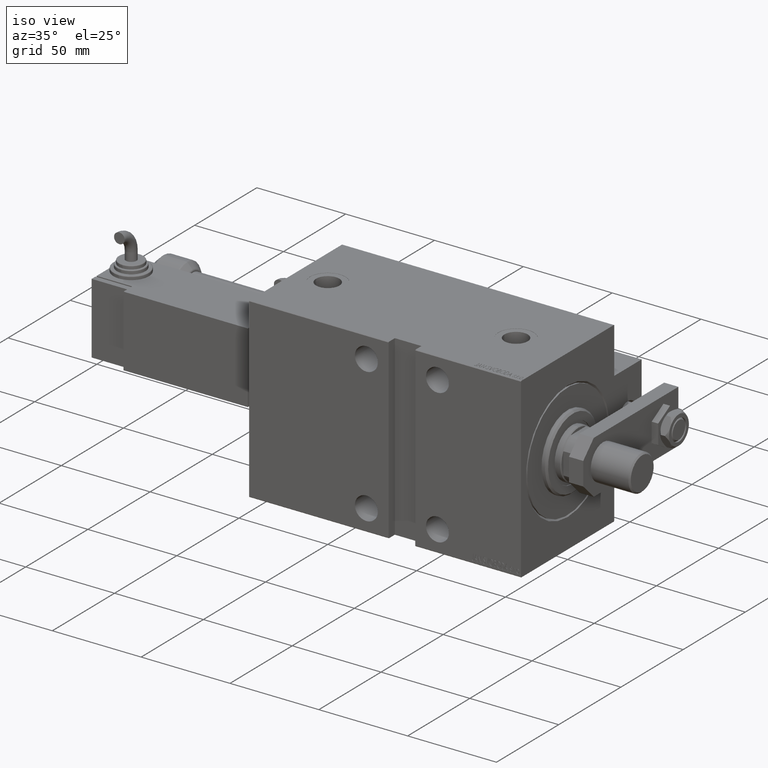
[diagram: clean part render]
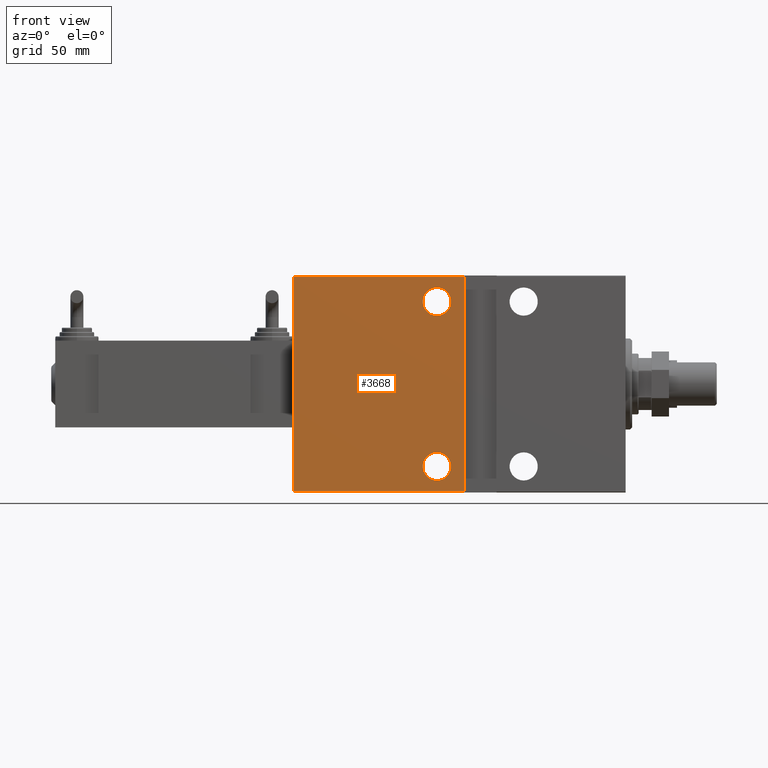
[diagram: tour spotlight — one face highlighted and labeled with its STEP entity id]
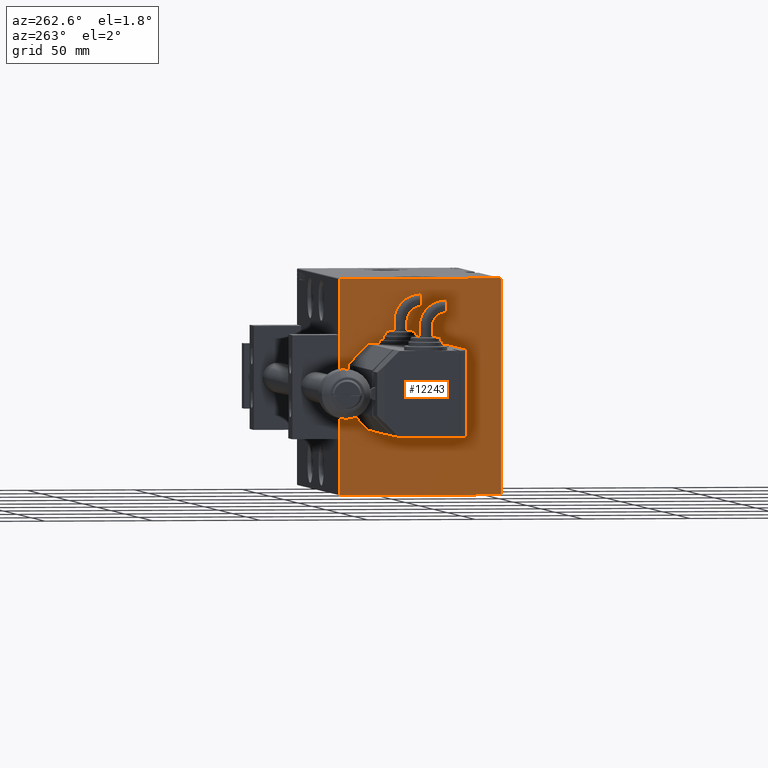
[diagram: tour spotlight — one face highlighted and labeled with its STEP entity id]
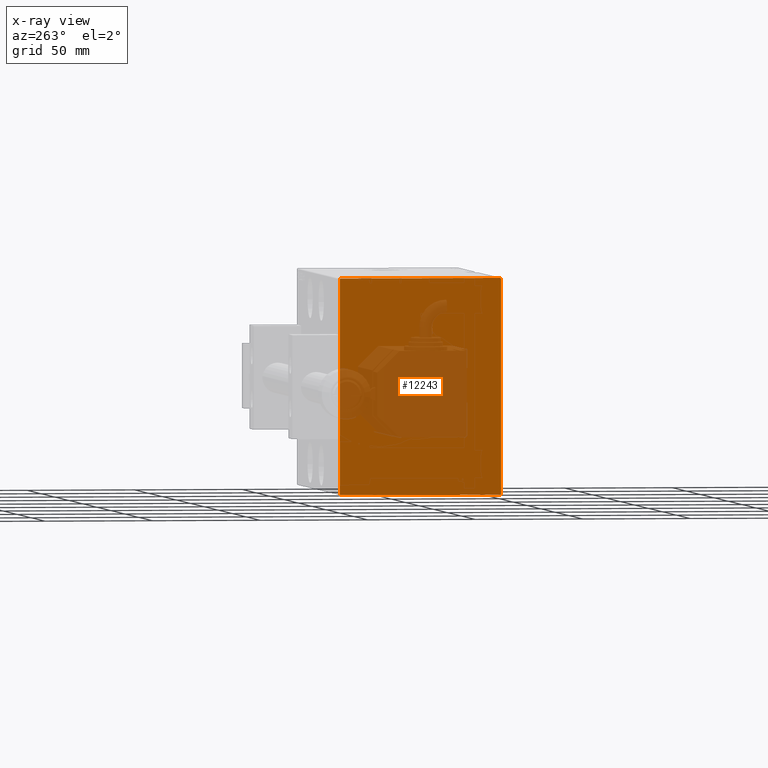
[diagram: x-ray of the same camera — body ghosted, this tour face saturated]
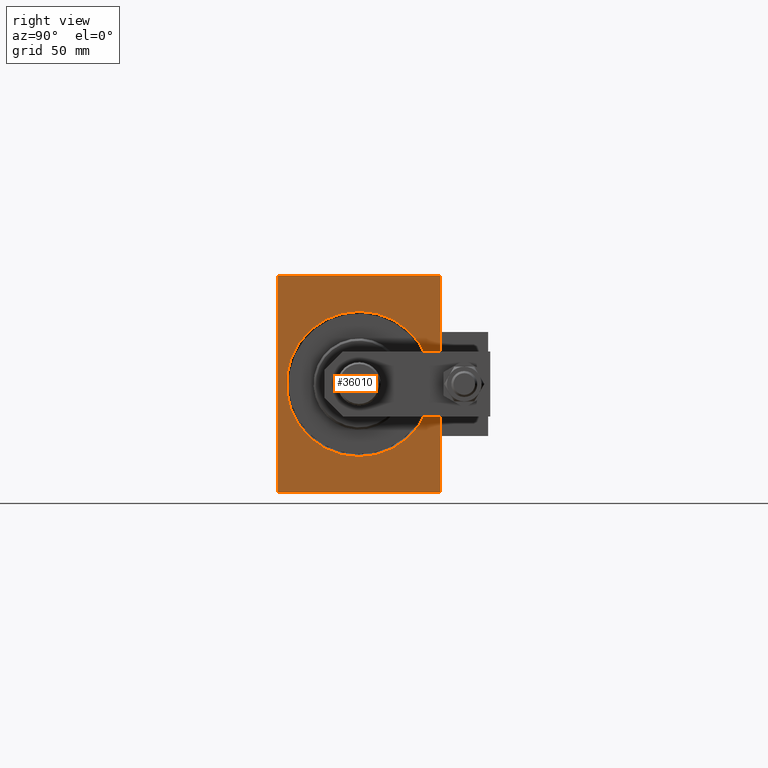
[diagram: tour spotlight — one face highlighted and labeled with its STEP entity id]
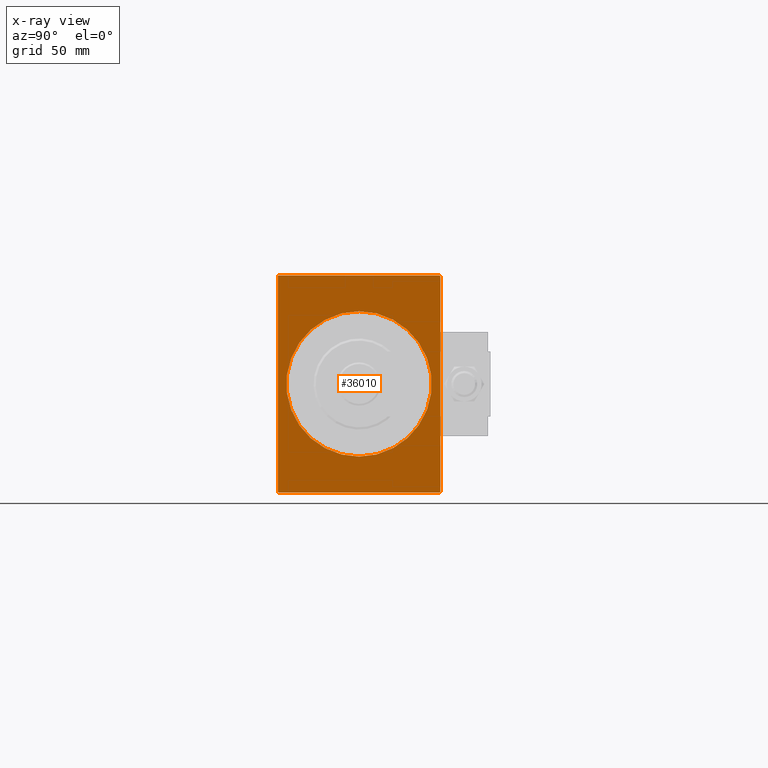
[diagram: x-ray of the same camera — body ghosted, this tour face saturated]
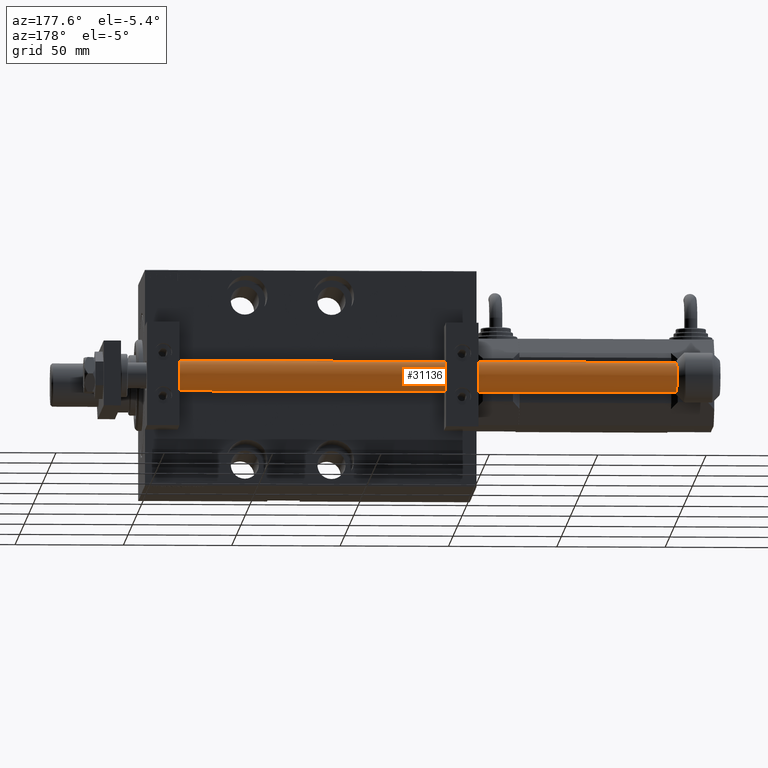
[diagram: tour spotlight — one face highlighted and labeled with its STEP entity id]
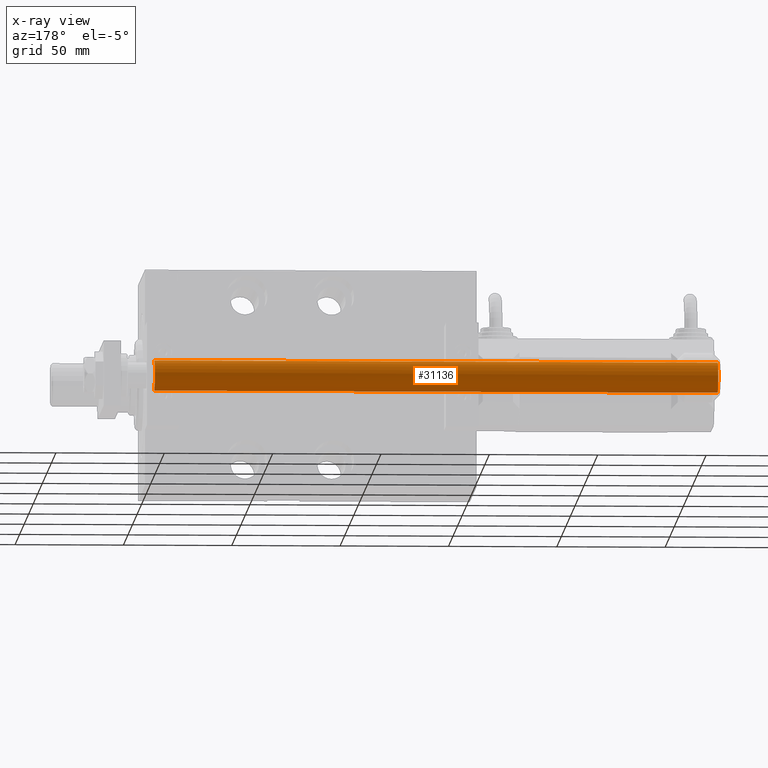
[diagram: x-ray of the same camera — body ghosted, this tour face saturated]
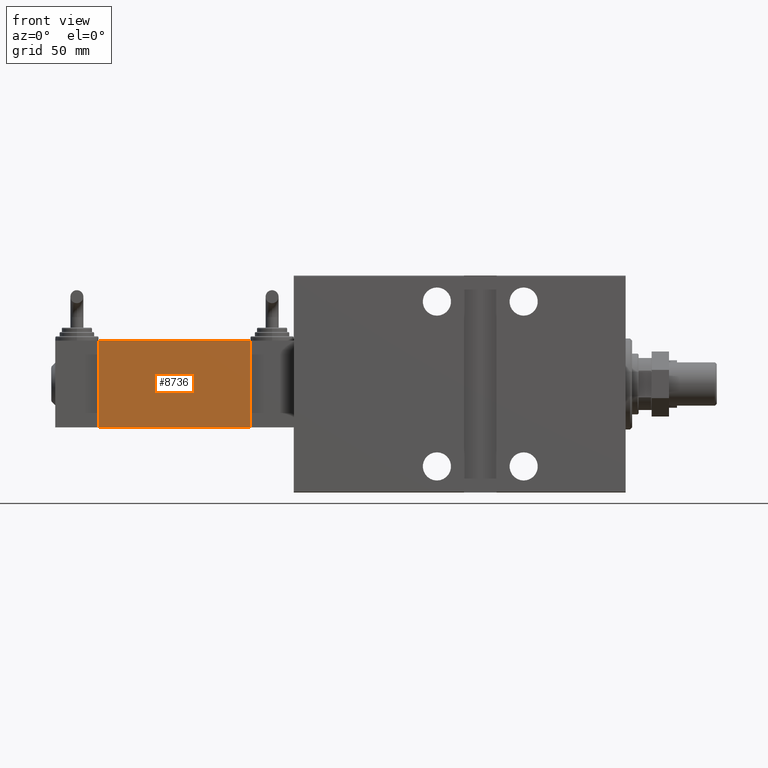
[diagram: tour spotlight — one face highlighted and labeled with its STEP entity id]
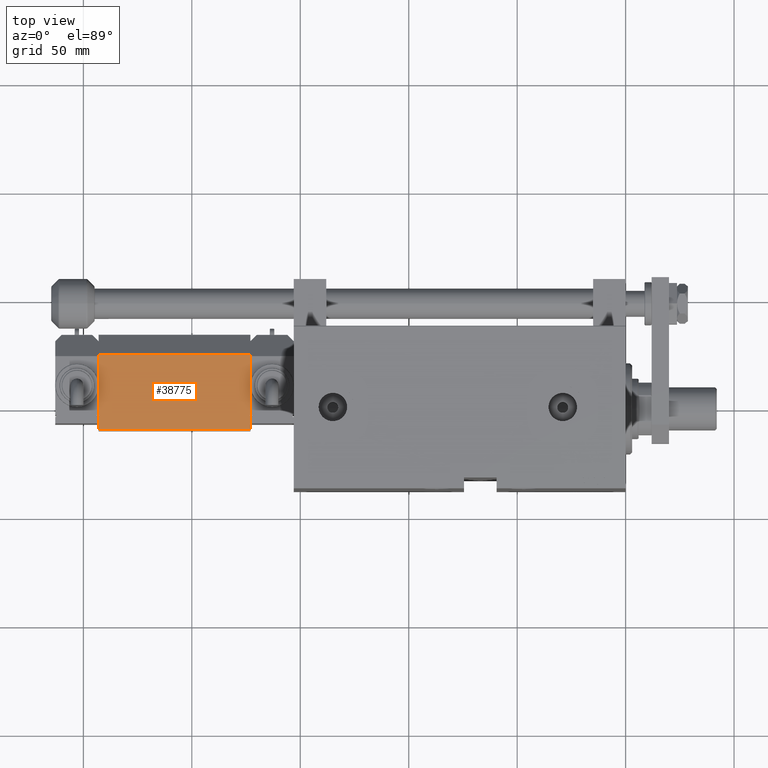
[diagram: tour spotlight — one face highlighted and labeled with its STEP entity id]
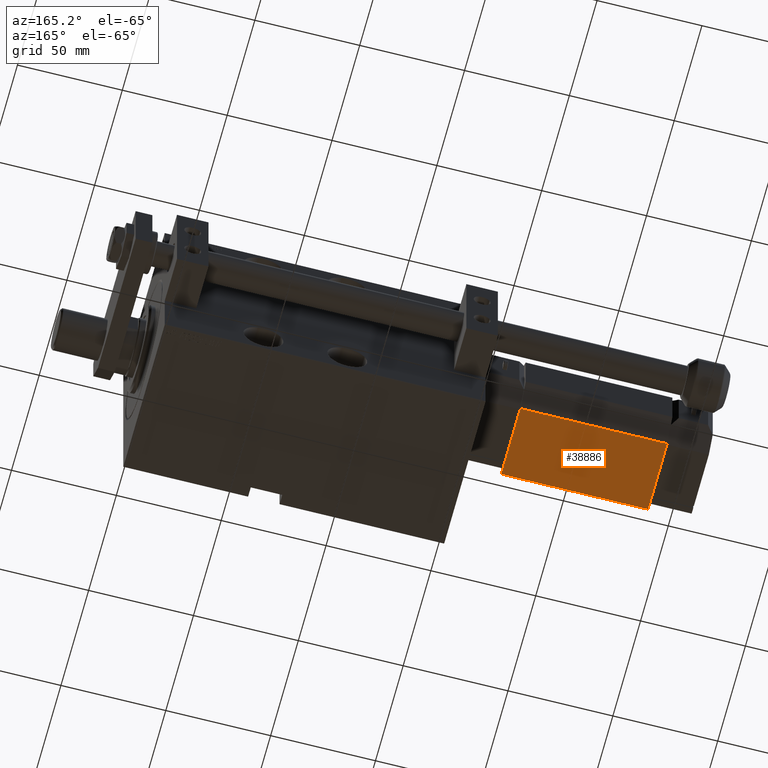
[diagram: tour spotlight — one face highlighted and labeled with its STEP entity id]
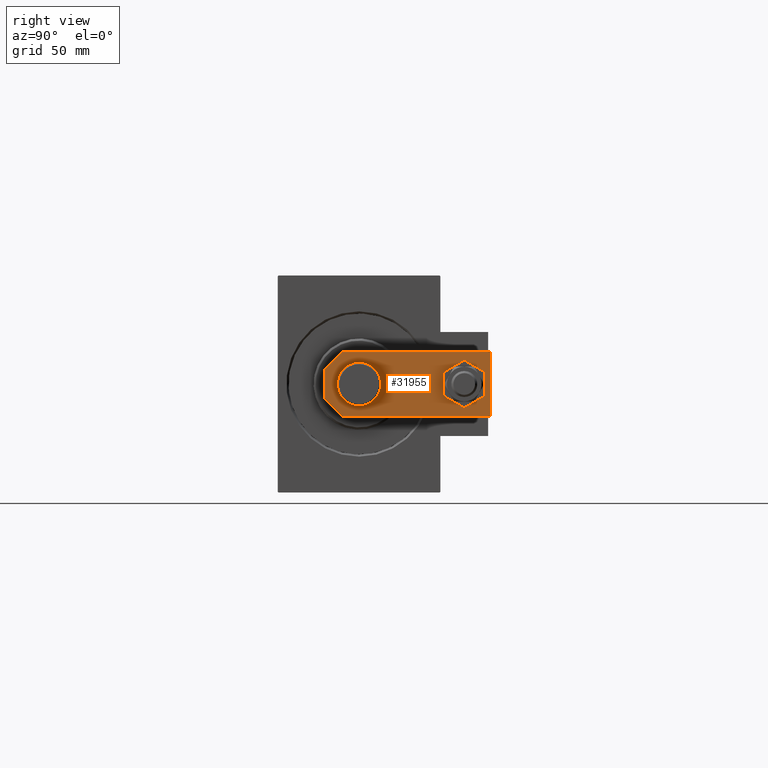
[diagram: tour spotlight — one face highlighted and labeled with its STEP entity id]
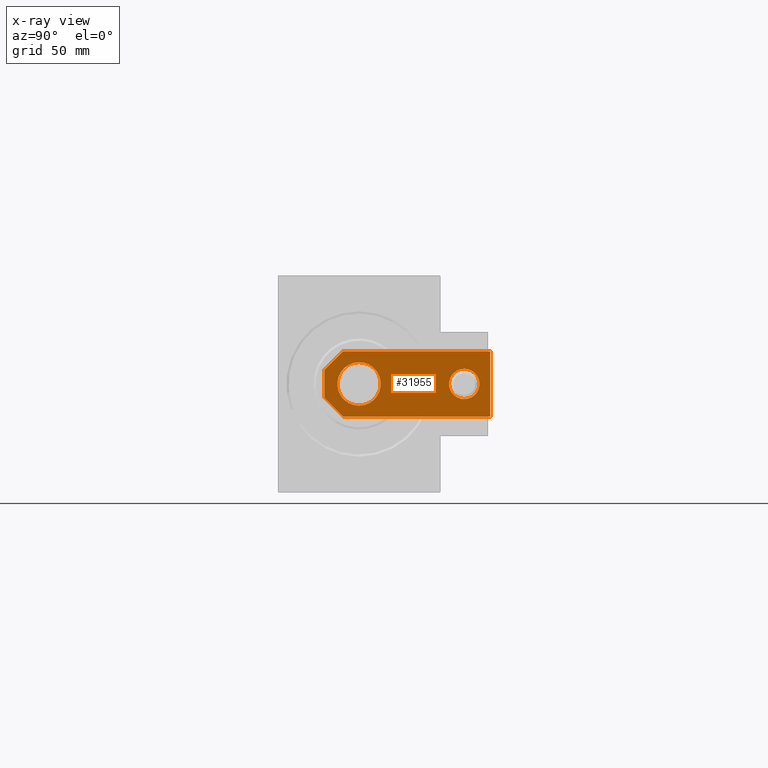
[diagram: x-ray of the same camera — body ghosted, this tour face saturated]
A machine part: a face-by-face anatomy tour. The part has 1133 B-rep faces; the first image is the clean iso view, then the 8 largest visible faces are spotlighted one at a time (largest first), each with its STEP entity span.

Face 1 — front view, entity #3668. In plain terms, the highlighted planar face has unit normal (-0, 1, -0).
Definition (entity closure, byte-faithful):
#235 = DIRECTION ( 'NONE',  ( 0.000000000000000000, 1.000000000000000000, 0.000000000000000000 ) ) ;
#253 = LINE ( 'NONE', #22828, #1662 ) ;
#479 = EDGE_CURVE ( 'NONE', #12399, #35926, #42917, .T. ) ;
#903 = AXIS2_PLACEMENT_3D ( 'NONE', #15784, #46635, #42341 ) ;
#993 = AXIS2_PLACEMENT_3D ( 'NONE', #20098, #27942, #24137 ) ;
#1662 = VECTOR ( 'NONE', #7859, 1000.000000000000000 ) ;
#2663 = DIRECTION ( 'NONE',  ( 0.000000000000000000, 0.000000000000000000, 1.000000000000000000 ) ) ;
#3243 = VECTOR ( 'NONE', #45287, 1000.000000000000000 ) ;
#3668 = ADVANCED_FACE ( 'NONE', ( #4389, #8449, #19852 ), #12509, .F. ) ;
#4389 = FACE_BOUND ( 'NONE', #40268, .T. ) ;
#4530 = CARTESIAN_POINT ( 'NONE',  ( 153.0000000000000000, 37.50000000000002132, -49.69999999999998153 ) ) ;
#5395 = EDGE_LOOP ( 'NONE', ( #19306, #37986 ) ) ;
#6107 = ORIENTED_EDGE ( 'NONE', *, *, #39025, .T. ) ;
#7859 = DIRECTION ( 'NONE',  ( 1.000000000000000000, 0.000000000000000000, 0.000000000000000000 ) ) ;
#8233 = CARTESIAN_POINT ( 'NONE',  ( 87.00000000000000000, 37.50000000000004263, 38.00000000000000711 ) ) ;
#8449 = FACE_BOUND ( 'NONE', #5395, .T. ) ;
#8485 = DIRECTION ( 'NONE',  ( 0.000000000000000000, 0.000000000000000000, 1.000000000000000000 ) ) ;
#9823 = CIRCLE ( 'NONE', #903, 6.500000000000005329 ) ;
#9908 = EDGE_LOOP ( 'NONE', ( #48104, #6107, #20477, #27159 ) ) ;
#9960 = AXIS2_PLACEMENT_3D ( 'NONE', #38724, #235, #15703 ) ;
#11993 = CARTESIAN_POINT ( 'NONE',  ( 153.0000000000000000, 37.50000000000002132, -49.69999999999998153 ) ) ;
#12399 = VERTEX_POINT ( 'NONE', #31303 ) ;
#12509 = PLANE ( 'NONE',  #993 ) ;
#12605 = DIRECTION ( 'NONE',  ( -1.387778780781445676E-16, 0.000000000000000000, -1.000000000000000000 ) ) ;
#13064 = CARTESIAN_POINT ( 'NONE',  ( 87.00000000000000000, 37.50000000000004263, -31.49999999999998579 ) ) ;
#13627 = EDGE_CURVE ( 'NONE', #35926, #12399, #49178, .T. ) ;
#13646 = AXIS2_PLACEMENT_3D ( 'NONE', #22427, #14565, #2663 ) ;
#14431 = LINE ( 'NONE', #18232, #3243 ) ;
#14565 = DIRECTION ( 'NONE',  ( 0.000000000000000000, 1.000000000000000000, 0.000000000000000000 ) ) ;
#14596 = ORIENTED_EDGE ( 'NONE', *, *, #26127, .F. ) ;
#14798 = CIRCLE ( 'NONE', #9960, 6.500000000000005329 ) ;
#14885 = VERTEX_POINT ( 'NONE', #4530 ) ;
#15048 = CARTESIAN_POINT ( 'NONE',  ( 74.50000000000002842, 37.50000000000001421, 49.70000000000003837 ) ) ;
#15703 = DIRECTION ( 'NONE',  ( 0.000000000000000000, 0.000000000000000000, 1.000000000000000000 ) ) ;
#15784 = CARTESIAN_POINT ( 'NONE',  ( 87.00000000000000000, 37.50000000000004263, -37.99999999999999289 ) ) ;
#15879 = VERTEX_POINT ( 'NONE', #43510 ) ;
#18232 = CARTESIAN_POINT ( 'NONE',  ( 153.0000000000000000, 37.50000000000002132, -50.00000000000000000 ) ) ;
#18305 = CARTESIAN_POINT ( 'NONE',  ( 87.00000000000000000, 37.50000000000004263, -44.50000000000000000 ) ) ;
#18984 = VERTEX_POINT ( 'NONE', #18305 ) ;
#19306 = ORIENTED_EDGE ( 'NONE', *, *, #13627, .F. ) ;
#19852 = FACE_OUTER_BOUND ( 'NONE', #9908, .T. ) ;
#20098 = CARTESIAN_POINT ( 'NONE',  ( 153.0000000000000000, 37.50000000000002132, -50.00000000000000000 ) ) ;
#20477 = ORIENTED_EDGE ( 'NONE', *, *, #46909, .F. ) ;
#22427 = CARTESIAN_POINT ( 'NONE',  ( 87.00000000000000000, 37.50000000000004263, 38.00000000000000711 ) ) ;
#22828 = CARTESIAN_POINT ( 'NONE',  ( 153.0000000000000000, 37.50000000000000711, 49.70000000000003837 ) ) ;
#24126 = DIRECTION ( 'NONE',  ( -1.000000000000000000, 0.000000000000000000, 0.000000000000000000 ) ) ;
#24137 = DIRECTION ( 'NONE',  ( 0.000000000000000000, 1.387778780781445676E-16, -1.000000000000000000 ) ) ;
#25495 = VECTOR ( 'NONE', #24126, 1000.000000000000000 ) ;
#26127 = EDGE_CURVE ( 'NONE', #34481, #18984, #9823, .T. ) ;
#27159 = ORIENTED_EDGE ( 'NONE', *, *, #28935, .T. ) ;
#27392 = EDGE_CURVE ( 'NONE', #14885, #47034, #14431, .T. ) ;
#27942 = DIRECTION ( 'NONE',  ( 0.000000000000000000, -1.000000000000000000, -1.387778780781445676E-16 ) ) ;
#28408 = AXIS2_PLACEMENT_3D ( 'NONE', #8233, #43152, #8485 ) ;
#28935 = EDGE_CURVE ( 'NONE', #38918, #47034, #253, .T. ) ;
#31238 = LINE ( 'NONE', #11993, #25495 ) ;
#31303 = CARTESIAN_POINT ( 'NONE',  ( 87.00000000000000000, 37.50000000000004263, 31.50000000000000000 ) ) ;
#31704 = ORIENTED_EDGE ( 'NONE', *, *, #33840, .F. ) ;
#32836 = CARTESIAN_POINT ( 'NONE',  ( 153.0000000000000000, 37.50000000000000711, 49.70000000000003837 ) ) ;
#33840 = EDGE_CURVE ( 'NONE', #18984, #34481, #14798, .T. ) ;
#34477 = CARTESIAN_POINT ( 'NONE',  ( 87.00000000000000000, 37.50000000000004263, 44.50000000000001421 ) ) ;
#34481 = VERTEX_POINT ( 'NONE', #13064 ) ;
#35926 = VERTEX_POINT ( 'NONE', #34477 ) ;
#37986 = ORIENTED_EDGE ( 'NONE', *, *, #479, .F. ) ;
#38724 = CARTESIAN_POINT ( 'NONE',  ( 87.00000000000000000, 37.50000000000004263, -37.99999999999999289 ) ) ;
#38918 = VERTEX_POINT ( 'NONE', #15048 ) ;
#39025 = EDGE_CURVE ( 'NONE', #14885, #15879, #31238, .T. ) ;
#39176 = CARTESIAN_POINT ( 'NONE',  ( 74.50000000000002842, 37.50000000000001421, 50.00000000000000000 ) ) ;
#39665 = LINE ( 'NONE', #39176, #49183 ) ;
#40268 = EDGE_LOOP ( 'NONE', ( #14596, #31704 ) ) ;
#42341 = DIRECTION ( 'NONE',  ( 0.000000000000000000, 0.000000000000000000, 1.000000000000000000 ) ) ;
#42917 = CIRCLE ( 'NONE', #28408, 6.500000000000005329 ) ;
#43152 = DIRECTION ( 'NONE',  ( 0.000000000000000000, 1.000000000000000000, 0.000000000000000000 ) ) ;
#43510 = CARTESIAN_POINT ( 'NONE',  ( 74.50000000000001421, 37.50000000000001421, -49.69999999999998153 ) ) ;
#45287 = DIRECTION ( 'NONE',  ( 0.000000000000000000, -1.387778780781445676E-16, 1.000000000000000000 ) ) ;
#46635 = DIRECTION ( 'NONE',  ( 0.000000000000000000, 1.000000000000000000, 0.000000000000000000 ) ) ;
#46909 = EDGE_CURVE ( 'NONE', #38918, #15879, #39665, .T. ) ;
#47034 = VERTEX_POINT ( 'NONE', #32836 ) ;
#48104 = ORIENTED_EDGE ( 'NONE', *, *, #27392, .F. ) ;
#49178 = CIRCLE ( 'NONE', #13646, 6.500000000000005329 ) ;
#49183 = VECTOR ( 'NONE', #12605, 1000.000000000000000 ) ;

Face 2 — auxiliary view, entity #12243. An x-ray twin of the same camera follows (body ghosted, this face saturated) — the face is partly hidden behind the body. In plain terms, the highlighted planar face has unit normal (-1, -0, 0).
Definition (entity closure, byte-faithful):
#968 = ORIENTED_EDGE ( 'NONE', *, *, #36955, .T. ) ;
#2402 = VERTEX_POINT ( 'NONE', #32547 ) ;
#2882 = DIRECTION ( 'NONE',  ( 0.000000000000000000, 0.000000000000000000, -1.000000000000000000 ) ) ;
#3243 = VECTOR ( 'NONE', #45287, 1000.000000000000000 ) ;
#4530 = CARTESIAN_POINT ( 'NONE',  ( 153.0000000000000000, 37.50000000000002132, -49.69999999999998153 ) ) ;
#4987 = CARTESIAN_POINT ( 'NONE',  ( 153.0000000000000000, -37.49999999999999289, -50.00000000000000000 ) ) ;
#5164 = VERTEX_POINT ( 'NONE', #25774 ) ;
#6175 = AXIS2_PLACEMENT_3D ( 'NONE', #14615, #6764, #49521 ) ;
#6764 = DIRECTION ( 'NONE',  ( 1.000000000000000000, 0.000000000000000000, 0.000000000000000000 ) ) ;
#8343 = CARTESIAN_POINT ( 'NONE',  ( 153.0000000000000000, 37.50000000000000711, 50.00000000000000000 ) ) ;
#10178 = ORIENTED_EDGE ( 'NONE', *, *, #42454, .T. ) ;
#12243 = ADVANCED_FACE ( 'NONE', ( #26495 ), #34092, .T. ) ;
#12712 = ORIENTED_EDGE ( 'NONE', *, *, #37973, .T. ) ;
#12758 = DIRECTION ( 'NONE',  ( -0.000000000000000000, 0.7071067811865474617, 0.7071067811865474617 ) ) ;
#12842 = VERTEX_POINT ( 'NONE', #16543 ) ;
#13280 = ORIENTED_EDGE ( 'NONE', *, *, #25683, .T. ) ;
#14268 = ORIENTED_EDGE ( 'NONE', *, *, #22732, .T. ) ;
#14298 = CARTESIAN_POINT ( 'NONE',  ( 153.0000000000000000, -37.49999999999999289, 50.00000000000000000 ) ) ;
#14431 = LINE ( 'NONE', #18232, #3243 ) ;
#14615 = CARTESIAN_POINT ( 'NONE',  ( 153.0000000000000000, 0.000000000000000000, 0.000000000000000000 ) ) ;
#14885 = VERTEX_POINT ( 'NONE', #4530 ) ;
#16543 = CARTESIAN_POINT ( 'NONE',  ( 153.0000000000000000, 37.20000000000000995, 50.00000000000000000 ) ) ;
#17057 = LINE ( 'NONE', #32239, #29116 ) ;
#17891 = VECTOR ( 'NONE', #2882, 1000.000000000000000 ) ;
#18232 = CARTESIAN_POINT ( 'NONE',  ( 153.0000000000000000, 37.50000000000002132, -50.00000000000000000 ) ) ;
#19402 = LINE ( 'NONE', #31053, #38959 ) ;
#19914 = DIRECTION ( 'NONE',  ( -0.000000000000000000, -0.7071067811865802133, 0.7071067811865149322 ) ) ;
#20455 = DIRECTION ( 'NONE',  ( 0.000000000000000000, 1.000000000000000000, 0.000000000000000000 ) ) ;
#20465 = ORIENTED_EDGE ( 'NONE', *, *, #32019, .T. ) ;
#20762 = DIRECTION ( 'NONE',  ( -0.000000000000000000, 0.7071067811865474617, -0.7071067811865474617 ) ) ;
#22732 = EDGE_CURVE ( 'NONE', #5164, #14885, #17057, .T. ) ;
#22806 = ORIENTED_EDGE ( 'NONE', *, *, #30408, .T. ) ;
#23751 = CARTESIAN_POINT ( 'NONE',  ( 153.0000000000000000, -37.49999999999999289, -49.69999999999998153 ) ) ;
#24273 = VERTEX_POINT ( 'NONE', #23751 ) ;
#24751 = LINE ( 'NONE', #4987, #37611 ) ;
#24883 = CARTESIAN_POINT ( 'NONE',  ( 153.0000000000000000, -37.19999999999996732, -50.00000000000000000 ) ) ;
#25683 = EDGE_CURVE ( 'NONE', #32989, #24273, #32274, .T. ) ;
#25774 = CARTESIAN_POINT ( 'NONE',  ( 153.0000000000000000, 37.19999999999999574, -50.00000000000000000 ) ) ;
#26495 = FACE_OUTER_BOUND ( 'NONE', #48754, .T. ) ;
#27030 = VECTOR ( 'NONE', #28085, 1000.000000000000000 ) ;
#27392 = EDGE_CURVE ( 'NONE', #14885, #47034, #14431, .T. ) ;
#28085 = DIRECTION ( 'NONE',  ( 0.000000000000000000, -1.000000000000000000, 0.000000000000000000 ) ) ;
#28602 = LINE ( 'NONE', #39475, #42447 ) ;
#29116 = VECTOR ( 'NONE', #12758, 1000.000000000000114 ) ;
#29906 = VERTEX_POINT ( 'NONE', #24883 ) ;
#30408 = EDGE_CURVE ( 'NONE', #47034, #12842, #19402, .T. ) ;
#31053 = CARTESIAN_POINT ( 'NONE',  ( 153.0000000000000000, 43.59999999999828901, 43.60000000000231779 ) ) ;
#31256 = CARTESIAN_POINT ( 'NONE',  ( 153.0000000000000000, -43.59999999999998721, 43.59999999999998721 ) ) ;
#31635 = LINE ( 'NONE', #8343, #27030 ) ;
#31710 = VECTOR ( 'NONE', #38837, 1000.000000000000114 ) ;
#32019 = EDGE_CURVE ( 'NONE', #2402, #32989, #47171, .T. ) ;
#32239 = CARTESIAN_POINT ( 'NONE',  ( 153.0000000000000000, 43.60000000000000142, -43.60000000000000142 ) ) ;
#32274 = LINE ( 'NONE', #14298, #17891 ) ;
#32547 = CARTESIAN_POINT ( 'NONE',  ( 153.0000000000000000, -37.19999999999996732, 50.00000000000000000 ) ) ;
#32836 = CARTESIAN_POINT ( 'NONE',  ( 153.0000000000000000, 37.50000000000000711, 49.70000000000003837 ) ) ;
#32989 = VERTEX_POINT ( 'NONE', #43134 ) ;
#34092 = PLANE ( 'NONE',  #6175 ) ;
#35920 = ORIENTED_EDGE ( 'NONE', *, *, #27392, .T. ) ;
#36955 = EDGE_CURVE ( 'NONE', #12842, #2402, #31635, .T. ) ;
#37611 = VECTOR ( 'NONE', #20455, 1000.000000000000000 ) ;
#37973 = EDGE_CURVE ( 'NONE', #29906, #5164, #24751, .T. ) ;
#38837 = DIRECTION ( 'NONE',  ( 0.000000000000000000, -0.7071067811865474617, -0.7071067811865474617 ) ) ;
#38959 = VECTOR ( 'NONE', #19914, 999.9999999999998863 ) ;
#39475 = CARTESIAN_POINT ( 'NONE',  ( 153.0000000000000000, -43.59999999999998721, -43.59999999999998721 ) ) ;
#42447 = VECTOR ( 'NONE', #20762, 1000.000000000000114 ) ;
#42454 = EDGE_CURVE ( 'NONE', #24273, #29906, #28602, .T. ) ;
#43134 = CARTESIAN_POINT ( 'NONE',  ( 153.0000000000000000, -37.49999999999999289, 49.69999999999998153 ) ) ;
#45287 = DIRECTION ( 'NONE',  ( 0.000000000000000000, -1.387778780781445676E-16, 1.000000000000000000 ) ) ;
#47034 = VERTEX_POINT ( 'NONE', #32836 ) ;
#47171 = LINE ( 'NONE', #31256, #31710 ) ;
#48754 = EDGE_LOOP ( 'NONE', ( #12712, #14268, #35920, #22806, #968, #20465, #13280, #10178 ) ) ;
#49521 = DIRECTION ( 'NONE',  ( 0.000000000000000000, 0.000000000000000000, -1.000000000000000000 ) ) ;

Face 3 — right view, entity #36010. An x-ray twin of the same camera follows (body ghosted, this face saturated) — the face is partly hidden behind the body. In plain terms, the highlighted planar face has unit normal (-1, -0, 0).
Definition (entity closure, byte-faithful):
#1466 = VECTOR ( 'NONE', #14332, 999.9999999999998863 ) ;
#1826 = CARTESIAN_POINT ( 'NONE',  ( 0.000000000000000000, 37.50000000000002132, -49.69999999999998153 ) ) ;
#2753 = AXIS2_PLACEMENT_3D ( 'NONE', #25087, #25597, #9648 ) ;
#3188 = DIRECTION ( 'NONE',  ( -0.000000000000000000, 0.7071067811865474617, 0.7071067811865474617 ) ) ;
#3219 = DIRECTION ( 'NONE',  ( 0.000000000000000000, -1.000000000000000000, 0.000000000000000000 ) ) ;
#3871 = EDGE_CURVE ( 'NONE', #13331, #30685, #10843, .T. ) ;
#3936 = DIRECTION ( 'NONE',  ( 0.000000000000000000, 0.000000000000000000, -1.000000000000000000 ) ) ;
#4396 = ORIENTED_EDGE ( 'NONE', *, *, #10738, .T. ) ;
#4639 = ORIENTED_EDGE ( 'NONE', *, *, #28884, .F. ) ;
#5014 = CARTESIAN_POINT ( 'NONE',  ( 0.000000000000000000, -37.19999999999996732, -50.00000000000000000 ) ) ;
#6231 = CARTESIAN_POINT ( 'NONE',  ( 0.000000000000000000, 37.20000000000000995, 50.00000000000000000 ) ) ;
#7133 = EDGE_CURVE ( 'NONE', #27829, #36740, #10412, .T. ) ;
#7751 = CARTESIAN_POINT ( 'NONE',  ( 0.000000000000000000, 0.000000000000000000, 0.000000000000000000 ) ) ;
#9105 = VECTOR ( 'NONE', #3219, 1000.000000000000000 ) ;
#9648 = DIRECTION ( 'NONE',  ( 0.000000000000000000, 0.000000000000000000, -1.000000000000000000 ) ) ;
#9906 = FACE_OUTER_BOUND ( 'NONE', #11954, .T. ) ;
#9922 = ORIENTED_EDGE ( 'NONE', *, *, #3871, .F. ) ;
#10163 = ORIENTED_EDGE ( 'NONE', *, *, #7133, .F. ) ;
#10412 = LINE ( 'NONE', #37250, #43205 ) ;
#10738 = EDGE_CURVE ( 'NONE', #11638, #18171, #28768, .T. ) ;
#10843 = LINE ( 'NONE', #26034, #9105 ) ;
#10884 = LINE ( 'NONE', #1826, #40678 ) ;
#11638 = VERTEX_POINT ( 'NONE', #33954 ) ;
#11954 = EDGE_LOOP ( 'NONE', ( #9922, #40042, #4639, #34119, #45873, #44366, #10163, #35101 ) ) ;
#12564 = LINE ( 'NONE', #24703, #14873 ) ;
#13331 = VERTEX_POINT ( 'NONE', #41448 ) ;
#14118 = EDGE_CURVE ( 'NONE', #13331, #37063, #48994, .T. ) ;
#14332 = DIRECTION ( 'NONE',  ( -0.000000000000000000, 0.7071067811865802133, -0.7071067811865149322 ) ) ;
#14873 = VECTOR ( 'NONE', #24446, 1000.000000000000114 ) ;
#17298 = DIRECTION ( 'NONE',  ( 0.000000000000000000, -0.7071067811865474617, -0.7071067811865474617 ) ) ;
#17316 = CIRCLE ( 'NONE', #23785, 33.50000000000000000 ) ;
#17341 = EDGE_CURVE ( 'NONE', #31508, #36809, #36401, .T. ) ;
#17636 = EDGE_CURVE ( 'NONE', #18171, #11638, #17316, .T. ) ;
#17778 = DIRECTION ( 'NONE',  ( 0.000000000000000000, 0.000000000000000000, -1.000000000000000000 ) ) ;
#18171 = VERTEX_POINT ( 'NONE', #30118 ) ;
#18201 = EDGE_CURVE ( 'NONE', #37991, #36809, #10884, .T. ) ;
#21949 = VECTOR ( 'NONE', #32273, 1000.000000000000000 ) ;
#22705 = LINE ( 'NONE', #34087, #37711 ) ;
#23785 = AXIS2_PLACEMENT_3D ( 'NONE', #7751, #38638, #3936 ) ;
#24446 = DIRECTION ( 'NONE',  ( -0.000000000000000000, -0.7071067811865474617, 0.7071067811865474617 ) ) ;
#24703 = CARTESIAN_POINT ( 'NONE',  ( 0.000000000000000000, -37.19999999999996732, -50.00000000000000000 ) ) ;
#24934 = LINE ( 'NONE', #44399, #21949 ) ;
#25087 = CARTESIAN_POINT ( 'NONE',  ( 0.000000000000000000, 0.000000000000000000, 0.000000000000000000 ) ) ;
#25344 = PLANE ( 'NONE',  #2753 ) ;
#25356 = DIRECTION ( 'NONE',  ( 0.000000000000000000, 0.000000000000000000, -1.000000000000000000 ) ) ;
#25597 = DIRECTION ( 'NONE',  ( 1.000000000000000000, 0.000000000000000000, 0.000000000000000000 ) ) ;
#26034 = CARTESIAN_POINT ( 'NONE',  ( 0.000000000000000000, 37.50000000000000711, 50.00000000000000000 ) ) ;
#27829 = VERTEX_POINT ( 'NONE', #49037 ) ;
#27964 = AXIS2_PLACEMENT_3D ( 'NONE', #44841, #36761, #17778 ) ;
#28054 = CARTESIAN_POINT ( 'NONE',  ( 0.000000000000000000, -37.49999999999999289, -50.00000000000000000 ) ) ;
#28768 = CIRCLE ( 'NONE', #27964, 33.50000000000000000 ) ;
#28884 = EDGE_CURVE ( 'NONE', #37991, #37063, #24934, .T. ) ;
#29192 = ORIENTED_EDGE ( 'NONE', *, *, #17636, .T. ) ;
#29585 = EDGE_LOOP ( 'NONE', ( #4396, #29192 ) ) ;
#30118 = CARTESIAN_POINT ( 'NONE',  ( 0.000000000000000000, 4.102566777143633774E-15, -33.50000000000000000 ) ) ;
#30685 = VERTEX_POINT ( 'NONE', #43597 ) ;
#31508 = VERTEX_POINT ( 'NONE', #5014 ) ;
#32273 = DIRECTION ( 'NONE',  ( 0.000000000000000000, -1.387778780781445676E-16, 1.000000000000000000 ) ) ;
#32692 = CARTESIAN_POINT ( 'NONE',  ( 0.000000000000000000, -37.49999999999999289, -49.69999999999998153 ) ) ;
#33927 = CARTESIAN_POINT ( 'NONE',  ( 0.000000000000000000, 37.19999999999999574, -50.00000000000000000 ) ) ;
#33954 = CARTESIAN_POINT ( 'NONE',  ( 0.000000000000000000, 0.000000000000000000, 33.50000000000000000 ) ) ;
#34087 = CARTESIAN_POINT ( 'NONE',  ( 0.000000000000000000, -37.49999999999999289, 49.69999999999998153 ) ) ;
#34119 = ORIENTED_EDGE ( 'NONE', *, *, #18201, .T. ) ;
#34497 = EDGE_CURVE ( 'NONE', #31508, #36740, #12564, .T. ) ;
#35101 = ORIENTED_EDGE ( 'NONE', *, *, #44699, .T. ) ;
#36010 = ADVANCED_FACE ( 'NONE', ( #44561, #9906 ), #25344, .F. ) ;
#36401 = LINE ( 'NONE', #28054, #44689 ) ;
#36740 = VERTEX_POINT ( 'NONE', #32692 ) ;
#36761 = DIRECTION ( 'NONE',  ( 1.000000000000000000, 0.000000000000000000, 0.000000000000000000 ) ) ;
#36809 = VERTEX_POINT ( 'NONE', #33927 ) ;
#37063 = VERTEX_POINT ( 'NONE', #48811 ) ;
#37250 = CARTESIAN_POINT ( 'NONE',  ( 0.000000000000000000, -37.49999999999999289, 50.00000000000000000 ) ) ;
#37711 = VECTOR ( 'NONE', #3188, 1000.000000000000114 ) ;
#37991 = VERTEX_POINT ( 'NONE', #39925 ) ;
#38638 = DIRECTION ( 'NONE',  ( 1.000000000000000000, 0.000000000000000000, 0.000000000000000000 ) ) ;
#39433 = DIRECTION ( 'NONE',  ( 0.000000000000000000, 1.000000000000000000, 0.000000000000000000 ) ) ;
#39925 = CARTESIAN_POINT ( 'NONE',  ( 0.000000000000000000, 37.50000000000002132, -49.69999999999998153 ) ) ;
#40042 = ORIENTED_EDGE ( 'NONE', *, *, #14118, .T. ) ;
#40678 = VECTOR ( 'NONE', #17298, 1000.000000000000114 ) ;
#41448 = CARTESIAN_POINT ( 'NONE',  ( 0.000000000000000000, 37.20000000000000995, 50.00000000000000000 ) ) ;
#43205 = VECTOR ( 'NONE', #25356, 1000.000000000000000 ) ;
#43597 = CARTESIAN_POINT ( 'NONE',  ( 0.000000000000000000, -37.19999999999996732, 50.00000000000000000 ) ) ;
#44366 = ORIENTED_EDGE ( 'NONE', *, *, #34497, .T. ) ;
#44399 = CARTESIAN_POINT ( 'NONE',  ( 0.000000000000000000, 37.50000000000002132, -50.00000000000000000 ) ) ;
#44561 = FACE_BOUND ( 'NONE', #29585, .T. ) ;
#44689 = VECTOR ( 'NONE', #39433, 1000.000000000000000 ) ;
#44699 = EDGE_CURVE ( 'NONE', #27829, #30685, #22705, .T. ) ;
#44841 = CARTESIAN_POINT ( 'NONE',  ( 0.000000000000000000, 0.000000000000000000, 0.000000000000000000 ) ) ;
#45873 = ORIENTED_EDGE ( 'NONE', *, *, #17341, .F. ) ;
#48811 = CARTESIAN_POINT ( 'NONE',  ( 0.000000000000000000, 37.50000000000000711, 49.70000000000003837 ) ) ;
#48994 = LINE ( 'NONE', #6231, #1466 ) ;
#49037 = CARTESIAN_POINT ( 'NONE',  ( 0.000000000000000000, -37.49999999999999289, 49.69999999999998153 ) ) ;

Face 4 — auxiliary view, entity #31136. An x-ray twin of the same camera follows (body ghosted, this face saturated) — the face is partly hidden behind the body. In plain terms, the highlighted cylindrical surface (edge-blend (fillet) strip) has radius 7 mm, axis along (1, 0, -0).
Definition (entity closure, byte-faithful):
#686 = DIRECTION ( 'NONE',  ( -0.000000000000000000, -0.000000000000000000, -1.000000000000000000 ) ) ;
#717 = VERTEX_POINT ( 'NONE', #46812 ) ;
#2070 = CARTESIAN_POINT ( 'NONE',  ( -7.000000000000000000, 0.000000000000000000, 263.0000000000000000 ) ) ;
#2630 = CARTESIAN_POINT ( 'NONE',  ( 0.000000000000000000, 0.000000000000000000, 262.0000000000000000 ) ) ;
#3183 = CARTESIAN_POINT ( 'NONE',  ( 0.000000000000000000, 0.000000000000000000, 262.0000000000000000 ) ) ;
#3492 = LINE ( 'NONE', #42215, #32050 ) ;
#4304 = CARTESIAN_POINT ( 'NONE',  ( 7.000000000000000000, 8.572527594031473190E-16, 2.000000000000057288 ) ) ;
#4886 = VERTEX_POINT ( 'NONE', #45799 ) ;
#6906 = ORIENTED_EDGE ( 'NONE', *, *, #12122, .T. ) ;
#7819 = DIRECTION ( 'NONE',  ( -0.000000000000000000, -0.000000000000000000, -1.000000000000000000 ) ) ;
#8613 = VERTEX_POINT ( 'NONE', #4304 ) ;
#8884 = CARTESIAN_POINT ( 'NONE',  ( 7.000000000000000000, 8.572527594031473190E-16, 262.0000000000000000 ) ) ;
#10484 = DIRECTION ( 'NONE',  ( 0.000000000000000000, 0.000000000000000000, -1.000000000000000000 ) ) ;
#10734 = ORIENTED_EDGE ( 'NONE', *, *, #16422, .T. ) ;
#11226 = EDGE_CURVE ( 'NONE', #19239, #8613, #3492, .T. ) ;
#11786 = DIRECTION ( 'NONE',  ( -0.000000000000000000, -0.000000000000000000, 1.000000000000000000 ) ) ;
#12122 = EDGE_CURVE ( 'NONE', #4886, #717, #35249, .T. ) ;
#12388 = FACE_OUTER_BOUND ( 'NONE', #12394, .T. ) ;
#12394 = EDGE_LOOP ( 'NONE', ( #22943, #19131, #10734, #33435, #43135, #6906 ) ) ;
#13371 = CARTESIAN_POINT ( 'NONE',  ( 0.000000000000000000, 0.000000000000000000, 262.0000000000000000 ) ) ;
#14071 = CIRCLE ( 'NONE', #16484, 7.000000000000000000 ) ;
#15943 = VERTEX_POINT ( 'NONE', #40978 ) ;
#16177 = DIRECTION ( 'NONE',  ( -1.000000000000000000, 0.000000000000000000, 0.000000000000000000 ) ) ;
#16422 = EDGE_CURVE ( 'NONE', #8613, #26467, #14071, .T. ) ;
#16484 = AXIS2_PLACEMENT_3D ( 'NONE', #26477, #11786, #26970 ) ;
#17035 = DIRECTION ( 'NONE',  ( -0.000000000000000000, -0.000000000000000000, -1.000000000000000000 ) ) ;
#17416 = DIRECTION ( 'NONE',  ( 0.000000000000000000, 0.000000000000000000, -1.000000000000000000 ) ) ;
#19131 = ORIENTED_EDGE ( 'NONE', *, *, #11226, .T. ) ;
#19239 = VERTEX_POINT ( 'NONE', #8884 ) ;
#20472 = EDGE_CURVE ( 'NONE', #15943, #26467, #32469, .T. ) ;
#22228 = DIRECTION ( 'NONE',  ( 1.000000000000000000, -8.881784197001252323E-16, 0.000000000000000000 ) ) ;
#22943 = ORIENTED_EDGE ( 'NONE', *, *, #48279, .T. ) ;
#23279 = CARTESIAN_POINT ( 'NONE',  ( 0.000000000000000000, 0.000000000000000000, 263.0000000000000000 ) ) ;
#26467 = VERTEX_POINT ( 'NONE', #42531 ) ;
#26477 = CARTESIAN_POINT ( 'NONE',  ( 0.000000000000000000, 0.000000000000000000, 2.000000000000057288 ) ) ;
#26970 = DIRECTION ( 'NONE',  ( 1.000000000000000000, 0.000000000000000000, 0.000000000000000000 ) ) ;
#28192 = CIRCLE ( 'NONE', #32244, 7.000000000000000000 ) ;
#30530 = DIRECTION ( 'NONE',  ( 0.000000000000000000, 0.000000000000000000, -1.000000000000000000 ) ) ;
#31136 = ADVANCED_FACE ( 'NONE', ( #12388 ), #34906, .T. ) ;
#32050 = VECTOR ( 'NONE', #686, 1000.000000000000000 ) ;
#32244 = AXIS2_PLACEMENT_3D ( 'NONE', #3183, #30530, #22228 ) ;
#32469 = LINE ( 'NONE', #2070, #33842 ) ;
#33303 = AXIS2_PLACEMENT_3D ( 'NONE', #23279, #7819, #16177 ) ;
#33435 = ORIENTED_EDGE ( 'NONE', *, *, #20472, .F. ) ;
#33764 = DIRECTION ( 'NONE',  ( 1.000000000000000000, 0.000000000000000000, 0.000000000000000000 ) ) ;
#33842 = VECTOR ( 'NONE', #17035, 1000.000000000000000 ) ;
#34906 = CYLINDRICAL_SURFACE ( 'NONE', #33303, 7.000000000000000000 ) ;
#35249 = CIRCLE ( 'NONE', #44133, 7.000000000000000000 ) ;
#37744 = AXIS2_PLACEMENT_3D ( 'NONE', #2630, #10484, #33764 ) ;
#39345 = CIRCLE ( 'NONE', #37744, 7.000000000000000000 ) ;
#40978 = CARTESIAN_POINT ( 'NONE',  ( -7.000000000000000000, 0.000000000000000000, 262.0000000000000000 ) ) ;
#42215 = CARTESIAN_POINT ( 'NONE',  ( 7.000000000000000000, 8.572527594031473190E-16, 263.0000000000000000 ) ) ;
#42531 = CARTESIAN_POINT ( 'NONE',  ( -7.000000000000000000, 0.000000000000000000, 2.000000000000057288 ) ) ;
#43135 = ORIENTED_EDGE ( 'NONE', *, *, #46506, .T. ) ;
#44133 = AXIS2_PLACEMENT_3D ( 'NONE', #13371, #17416, #48274 ) ;
#45799 = CARTESIAN_POINT ( 'NONE',  ( -0.4999999999999992784, 6.982120021884471228, 262.0000000000000000 ) ) ;
#46506 = EDGE_CURVE ( 'NONE', #15943, #4886, #39345, .T. ) ;
#46812 = CARTESIAN_POINT ( 'NONE',  ( 0.5000000000000000000, 6.982120021884470340, 262.0000000000000000 ) ) ;
#48274 = DIRECTION ( 'NONE',  ( 1.000000000000000000, 0.000000000000000000, 0.000000000000000000 ) ) ;
#48279 = EDGE_CURVE ( 'NONE', #717, #19239, #28192, .T. ) ;

Face 5 — front view, entity #8736. In plain terms, the highlighted planar face has unit normal (-0, 1, -0).
Definition (entity closure, byte-faithful):
#639 = EDGE_CURVE ( 'NONE', #38913, #13954, #5742, .T. ) ;
#1754 = PLANE ( 'NONE',  #5246 ) ;
#3736 = VECTOR ( 'NONE', #31649, 1000.000000000000000 ) ;
#4124 = CARTESIAN_POINT ( 'NONE',  ( -19.99999999999999289, -22.00000000000000000, 70.00000000000000000 ) ) ;
#4913 = ORIENTED_EDGE ( 'NONE', *, *, #639, .T. ) ;
#5246 = AXIS2_PLACEMENT_3D ( 'NONE', #40746, #28869, #6072 ) ;
#5742 = LINE ( 'NONE', #7604, #23531 ) ;
#5898 = CARTESIAN_POINT ( 'NONE',  ( 20.00000000000000000, -22.00000000000000000, 70.00000000000000000 ) ) ;
#6072 = DIRECTION ( 'NONE',  ( 0.000000000000000000, -0.000000000000000000, 1.000000000000000000 ) ) ;
#7162 = EDGE_LOOP ( 'NONE', ( #17829, #29211, #32256, #4913 ) ) ;
#7369 = VECTOR ( 'NONE', #28680, 1000.000000000000000 ) ;
#7604 = CARTESIAN_POINT ( 'NONE',  ( -19.99999999999999289, -22.00000000000000000, 70.00000000000000000 ) ) ;
#8736 = ADVANCED_FACE ( 'NONE', ( #13432 ), #1754, .F. ) ;
#12159 = LINE ( 'NONE', #39478, #3736 ) ;
#13432 = FACE_OUTER_BOUND ( 'NONE', #7162, .T. ) ;
#13954 = VERTEX_POINT ( 'NONE', #36116 ) ;
#17113 = CARTESIAN_POINT ( 'NONE',  ( 20.00000000000000000, -22.00000000000000000, 0.000000000000000000 ) ) ;
#17291 = LINE ( 'NONE', #28427, #7369 ) ;
#17829 = ORIENTED_EDGE ( 'NONE', *, *, #29878, .T. ) ;
#23531 = VECTOR ( 'NONE', #42526, 1000.000000000000000 ) ;
#24472 = CARTESIAN_POINT ( 'NONE',  ( -19.99999999999999289, -22.00000000000000000, 70.00000000000000000 ) ) ;
#28427 = CARTESIAN_POINT ( 'NONE',  ( -19.99999999999999289, -22.00000000000000000, 0.000000000000000000 ) ) ;
#28680 = DIRECTION ( 'NONE',  ( 1.000000000000000000, 0.000000000000000000, 0.000000000000000000 ) ) ;
#28869 = DIRECTION ( 'NONE',  ( 0.000000000000000000, 1.000000000000000000, 0.000000000000000000 ) ) ;
#29211 = ORIENTED_EDGE ( 'NONE', *, *, #46627, .F. ) ;
#29878 = EDGE_CURVE ( 'NONE', #13954, #34548, #17291, .T. ) ;
#30943 = VECTOR ( 'NONE', #38912, 1000.000000000000000 ) ;
#31649 = DIRECTION ( 'NONE',  ( -0.000000000000000000, -0.000000000000000000, -1.000000000000000000 ) ) ;
#32256 = ORIENTED_EDGE ( 'NONE', *, *, #32622, .F. ) ;
#32622 = EDGE_CURVE ( 'NONE', #38913, #35732, #36121, .T. ) ;
#34548 = VERTEX_POINT ( 'NONE', #17113 ) ;
#35732 = VERTEX_POINT ( 'NONE', #5898 ) ;
#36116 = CARTESIAN_POINT ( 'NONE',  ( -19.99999999999999289, -22.00000000000000000, 0.000000000000000000 ) ) ;
#36121 = LINE ( 'NONE', #24472, #30943 ) ;
#38912 = DIRECTION ( 'NONE',  ( 1.000000000000000000, 0.000000000000000000, 0.000000000000000000 ) ) ;
#38913 = VERTEX_POINT ( 'NONE', #4124 ) ;
#39478 = CARTESIAN_POINT ( 'NONE',  ( 20.00000000000000000, -22.00000000000000000, 70.00000000000000000 ) ) ;
#40746 = CARTESIAN_POINT ( 'NONE',  ( -19.99999999999999289, -22.00000000000000000, 70.00000000000000000 ) ) ;
#42526 = DIRECTION ( 'NONE',  ( -0.000000000000000000, -0.000000000000000000, -1.000000000000000000 ) ) ;
#46627 = EDGE_CURVE ( 'NONE', #35732, #34548, #12159, .T. ) ;

Face 6 — top view, entity #38775. In plain terms, the highlighted planar face has unit normal (-0, 0, -1).
Definition (entity closure, byte-faithful):
#639 = EDGE_CURVE ( 'NONE', #38913, #13954, #5742, .T. ) ;
#1304 = LINE ( 'NONE', #16273, #17400 ) ;
#2609 = ORIENTED_EDGE ( 'NONE', *, *, #6048, .T. ) ;
#4124 = CARTESIAN_POINT ( 'NONE',  ( -19.99999999999999289, -22.00000000000000000, 70.00000000000000000 ) ) ;
#4479 = AXIS2_PLACEMENT_3D ( 'NONE', #25821, #33415, #14185 ) ;
#5742 = LINE ( 'NONE', #7604, #23531 ) ;
#6048 = EDGE_CURVE ( 'NONE', #39644, #10108, #18928, .T. ) ;
#7604 = CARTESIAN_POINT ( 'NONE',  ( -19.99999999999999289, -22.00000000000000000, 70.00000000000000000 ) ) ;
#8754 = CARTESIAN_POINT ( 'NONE',  ( -20.00000000000000000, 12.49999999999999289, 0.000000000000000000 ) ) ;
#10108 = VERTEX_POINT ( 'NONE', #8754 ) ;
#13481 = DIRECTION ( 'NONE',  ( 1.577021341797097560E-16, -1.000000000000000000, 0.000000000000000000 ) ) ;
#13954 = VERTEX_POINT ( 'NONE', #36116 ) ;
#14185 = DIRECTION ( 'NONE',  ( -1.577021341797097560E-16, 1.000000000000000000, 0.000000000000000000 ) ) ;
#14889 = CARTESIAN_POINT ( 'NONE',  ( -20.00000000000000000, 12.49999999999999289, 70.00000000000000000 ) ) ;
#15257 = ORIENTED_EDGE ( 'NONE', *, *, #639, .F. ) ;
#15732 = VECTOR ( 'NONE', #42901, 1000.000000000000000 ) ;
#16273 = CARTESIAN_POINT ( 'NONE',  ( -20.00000000000000000, 22.00000000000000000, 0.000000000000000000 ) ) ;
#16336 = LINE ( 'NONE', #27721, #15732 ) ;
#17400 = VECTOR ( 'NONE', #13481, 1000.000000000000000 ) ;
#17682 = ORIENTED_EDGE ( 'NONE', *, *, #43139, .T. ) ;
#18928 = LINE ( 'NONE', #14889, #39879 ) ;
#23531 = VECTOR ( 'NONE', #42526, 1000.000000000000000 ) ;
#23789 = ORIENTED_EDGE ( 'NONE', *, *, #37411, .F. ) ;
#25821 = CARTESIAN_POINT ( 'NONE',  ( -20.00000000000000000, 22.00000000000000000, 70.00000000000000000 ) ) ;
#27706 = EDGE_LOOP ( 'NONE', ( #23789, #2609, #17682, #15257 ) ) ;
#27721 = CARTESIAN_POINT ( 'NONE',  ( -20.00000000000000000, 22.00000000000000000, 70.00000000000000000 ) ) ;
#28109 = CARTESIAN_POINT ( 'NONE',  ( -20.00000000000000000, 12.49999999999999289, 70.00000000000000000 ) ) ;
#33415 = DIRECTION ( 'NONE',  ( 1.000000000000000000, 1.577021341797097560E-16, -0.000000000000000000 ) ) ;
#36116 = CARTESIAN_POINT ( 'NONE',  ( -19.99999999999999289, -22.00000000000000000, 0.000000000000000000 ) ) ;
#37218 = FACE_OUTER_BOUND ( 'NONE', #27706, .T. ) ;
#37411 = EDGE_CURVE ( 'NONE', #39644, #38913, #16336, .T. ) ;
#38775 = ADVANCED_FACE ( 'NONE', ( #37218 ), #41248, .F. ) ;
#38913 = VERTEX_POINT ( 'NONE', #4124 ) ;
#39644 = VERTEX_POINT ( 'NONE', #28109 ) ;
#39879 = VECTOR ( 'NONE', #45981, 1000.000000000000000 ) ;
#41248 = PLANE ( 'NONE',  #4479 ) ;
#42526 = DIRECTION ( 'NONE',  ( -0.000000000000000000, -0.000000000000000000, -1.000000000000000000 ) ) ;
#42901 = DIRECTION ( 'NONE',  ( 1.577021341797097560E-16, -1.000000000000000000, 0.000000000000000000 ) ) ;
#43139 = EDGE_CURVE ( 'NONE', #10108, #13954, #1304, .T. ) ;
#45981 = DIRECTION ( 'NONE',  ( -0.000000000000000000, 0.000000000000000000, -1.000000000000000000 ) ) ;

Face 7 — auxiliary view, entity #38886. In plain terms, the highlighted planar face has unit normal (0, 0, 1).
Definition (entity closure, byte-faithful):
#784 = ORIENTED_EDGE ( 'NONE', *, *, #19813, .T. ) ;
#2857 = AXIS2_PLACEMENT_3D ( 'NONE', #38819, #49209, #18837 ) ;
#3046 = EDGE_CURVE ( 'NONE', #35732, #47975, #36414, .T. ) ;
#3736 = VECTOR ( 'NONE', #31649, 1000.000000000000000 ) ;
#5500 = VECTOR ( 'NONE', #48231, 1000.000000000000000 ) ;
#5898 = CARTESIAN_POINT ( 'NONE',  ( 20.00000000000000000, -22.00000000000000000, 70.00000000000000000 ) ) ;
#7684 = FACE_OUTER_BOUND ( 'NONE', #45850, .T. ) ;
#9663 = VERTEX_POINT ( 'NONE', #30597 ) ;
#10277 = LINE ( 'NONE', #33053, #5500 ) ;
#12159 = LINE ( 'NONE', #39478, #3736 ) ;
#17113 = CARTESIAN_POINT ( 'NONE',  ( 20.00000000000000000, -22.00000000000000000, 0.000000000000000000 ) ) ;
#17184 = CARTESIAN_POINT ( 'NONE',  ( 20.00000000000000000, 21.99999999999999645, 70.00000000000000000 ) ) ;
#18817 = EDGE_CURVE ( 'NONE', #9663, #47975, #10277, .T. ) ;
#18837 = DIRECTION ( 'NONE',  ( 0.000000000000000000, 0.000000000000000000, 1.000000000000000000 ) ) ;
#19813 = EDGE_CURVE ( 'NONE', #34548, #9663, #39085, .T. ) ;
#27334 = VECTOR ( 'NONE', #35291, 1000.000000000000000 ) ;
#30597 = CARTESIAN_POINT ( 'NONE',  ( 20.00000000000000000, 12.49999999999994671, 0.000000000000000000 ) ) ;
#30894 = VECTOR ( 'NONE', #39200, 1000.000000000000000 ) ;
#31649 = DIRECTION ( 'NONE',  ( -0.000000000000000000, -0.000000000000000000, -1.000000000000000000 ) ) ;
#33053 = CARTESIAN_POINT ( 'NONE',  ( 20.00000000000000000, 12.49999999999994671, 70.00000000000000000 ) ) ;
#34274 = PLANE ( 'NONE',  #2857 ) ;
#34548 = VERTEX_POINT ( 'NONE', #17113 ) ;
#34883 = CARTESIAN_POINT ( 'NONE',  ( 20.00000000000000000, 12.49999999999994671, 70.00000000000000000 ) ) ;
#35040 = CARTESIAN_POINT ( 'NONE',  ( 20.00000000000000000, 21.99999999999999645, 0.000000000000000000 ) ) ;
#35291 = DIRECTION ( 'NONE',  ( -0.000000000000000000, 1.000000000000000000, -0.000000000000000000 ) ) ;
#35732 = VERTEX_POINT ( 'NONE', #5898 ) ;
#36414 = LINE ( 'NONE', #17184, #30894 ) ;
#37746 = ORIENTED_EDGE ( 'NONE', *, *, #18817, .T. ) ;
#38819 = CARTESIAN_POINT ( 'NONE',  ( 20.00000000000000000, 21.99999999999999645, 70.00000000000000000 ) ) ;
#38886 = ADVANCED_FACE ( 'NONE', ( #7684 ), #34274, .F. ) ;
#39085 = LINE ( 'NONE', #35040, #27334 ) ;
#39200 = DIRECTION ( 'NONE',  ( -0.000000000000000000, 1.000000000000000000, -0.000000000000000000 ) ) ;
#39478 = CARTESIAN_POINT ( 'NONE',  ( 20.00000000000000000, -22.00000000000000000, 70.00000000000000000 ) ) ;
#39765 = ORIENTED_EDGE ( 'NONE', *, *, #3046, .F. ) ;
#43694 = ORIENTED_EDGE ( 'NONE', *, *, #46627, .T. ) ;
#45850 = EDGE_LOOP ( 'NONE', ( #784, #37746, #39765, #43694 ) ) ;
#46627 = EDGE_CURVE ( 'NONE', #35732, #34548, #12159, .T. ) ;
#47975 = VERTEX_POINT ( 'NONE', #34883 ) ;
#48231 = DIRECTION ( 'NONE',  ( 0.000000000000000000, 0.000000000000000000, 1.000000000000000000 ) ) ;
#49209 = DIRECTION ( 'NONE',  ( -1.000000000000000000, 0.000000000000000000, 0.000000000000000000 ) ) ;

Face 8 — right view, entity #31955. An x-ray twin of the same camera follows (body ghosted, this face saturated) — the face is partly hidden behind the body. In plain terms, the highlighted planar face has unit normal (1, 0, -0).
Definition (entity closure, byte-faithful):
#110 = EDGE_CURVE ( 'NONE', #46802, #10049, #7788, .T. ) ;
#1732 = DIRECTION ( 'NONE',  ( 0.7071067811865465735, -0.7071067811865484609, 0.000000000000000000 ) ) ;
#2289 = CARTESIAN_POINT ( 'NONE',  ( -14.99999999999999822, 76.50000000000000000, 8.000000000000000000 ) ) ;
#3143 = ORIENTED_EDGE ( 'NONE', *, *, #4098, .T. ) ;
#3446 = CARTESIAN_POINT ( 'NONE',  ( 6.499999999999972466, 9.629649721936179265E-32, 8.000000000000000000 ) ) ;
#3605 = AXIS2_PLACEMENT_3D ( 'NONE', #29487, #10006, #14301 ) ;
#3955 = CARTESIAN_POINT ( 'NONE',  ( -14.99999999999999822, 76.50000000000000000, 8.000000000000000000 ) ) ;
#4098 = EDGE_CURVE ( 'NONE', #10049, #45474, #31074, .T. ) ;
#5722 = CIRCLE ( 'NONE', #13035, 10.00000000000000178 ) ;
#5928 = ORIENTED_EDGE ( 'NONE', *, *, #33834, .F. ) ;
#6131 = EDGE_CURVE ( 'NONE', #13171, #31712, #29590, .T. ) ;
#6228 = FACE_OUTER_BOUND ( 'NONE', #29723, .T. ) ;
#6472 = FACE_BOUND ( 'NONE', #31691, .T. ) ;
#6685 = EDGE_LOOP ( 'NONE', ( #39785, #5928 ) ) ;
#7544 = DIRECTION ( 'NONE',  ( 1.000000000000000000, 0.000000000000000000, 0.000000000000000000 ) ) ;
#7788 = LINE ( 'NONE', #37938, #22709 ) ;
#8277 = VERTEX_POINT ( 'NONE', #24113 ) ;
#8499 = CIRCLE ( 'NONE', #3605, 10.00000000000000178 ) ;
#8756 = VECTOR ( 'NONE', #35557, 1000.000000000000000 ) ;
#10006 = DIRECTION ( 'NONE',  ( 0.000000000000000000, 0.000000000000000000, 1.000000000000000000 ) ) ;
#10049 = VERTEX_POINT ( 'NONE', #3446 ) ;
#11086 = DIRECTION ( 'NONE',  ( -1.000000000000000000, 0.000000000000000000, 0.000000000000000000 ) ) ;
#11321 = ORIENTED_EDGE ( 'NONE', *, *, #6131, .T. ) ;
#11457 = ORIENTED_EDGE ( 'NONE', *, *, #36994, .T. ) ;
#12025 = ORIENTED_EDGE ( 'NONE', *, *, #38243, .F. ) ;
#12147 = CARTESIAN_POINT ( 'NONE',  ( 1.963948872468190046E-17, 64.50000000000000000, 8.000000000000000000 ) ) ;
#12907 = DIRECTION ( 'NONE',  ( 1.000000000000000000, 0.000000000000000000, 0.000000000000000000 ) ) ;
#13035 = AXIS2_PLACEMENT_3D ( 'NONE', #23009, #42211, #7544 ) ;
#13171 = VERTEX_POINT ( 'NONE', #25271 ) ;
#14301 = DIRECTION ( 'NONE',  ( 1.000000000000000000, 0.000000000000000000, 0.000000000000000000 ) ) ;
#14502 = VERTEX_POINT ( 'NONE', #14765 ) ;
#14765 = CARTESIAN_POINT ( 'NONE',  ( -15.00000000000000711, 8.500000000000021316, 8.000000000000000000 ) ) ;
#15799 = CIRCLE ( 'NONE', #21457, 7.000000000000002665 ) ;
#17132 = DIRECTION ( 'NONE',  ( 1.000000000000000000, 0.000000000000000000, 0.000000000000000000 ) ) ;
#17309 = ORIENTED_EDGE ( 'NONE', *, *, #36770, .T. ) ;
#20386 = CARTESIAN_POINT ( 'NONE',  ( 15.00000000000000888, 9.629649721936179265E-32, 8.000000000000000000 ) ) ;
#20928 = PLANE ( 'NONE',  #42200 ) ;
#21316 = LINE ( 'NONE', #2289, #22233 ) ;
#21457 = AXIS2_PLACEMENT_3D ( 'NONE', #35179, #39975, #12907 ) ;
#22233 = VECTOR ( 'NONE', #48615, 1000.000000000000000 ) ;
#22709 = VECTOR ( 'NONE', #26781, 1000.000000000000000 ) ;
#22988 = DIRECTION ( 'NONE',  ( 0.7071067811865489050, 0.7071067811865461294, -0.000000000000000000 ) ) ;
#22993 = VECTOR ( 'NONE', #11086, 1000.000000000000000 ) ;
#23009 = CARTESIAN_POINT ( 'NONE',  ( 0.000000000000000000, 16.00000000000000000, 8.000000000000000000 ) ) ;
#23734 = AXIS2_PLACEMENT_3D ( 'NONE', #12147, #24045, #38481 ) ;
#24045 = DIRECTION ( 'NONE',  ( 0.000000000000000000, 0.000000000000000000, 1.000000000000000000 ) ) ;
#24113 = CARTESIAN_POINT ( 'NONE',  ( 10.00000000000000178, 16.00000000000000000, 8.000000000000000000 ) ) ;
#24988 = ORIENTED_EDGE ( 'NONE', *, *, #25288, .F. ) ;
#25167 = VERTEX_POINT ( 'NONE', #26295 ) ;
#25271 = CARTESIAN_POINT ( 'NONE',  ( 15.00000000000000355, 76.50000000000000000, 8.000000000000000000 ) ) ;
#25288 = EDGE_CURVE ( 'NONE', #8277, #43385, #5722, .T. ) ;
#26061 = VECTOR ( 'NONE', #22988, 1000.000000000000114 ) ;
#26217 = VERTEX_POINT ( 'NONE', #44085 ) ;
#26295 = CARTESIAN_POINT ( 'NONE',  ( -7.000000000000002665, 64.50000000000000000, 8.000000000000000000 ) ) ;
#26781 = DIRECTION ( 'NONE',  ( 1.000000000000000000, 0.000000000000000000, 0.000000000000000000 ) ) ;
#28336 = CARTESIAN_POINT ( 'NONE',  ( -3.250000000000012434, -3.250000000000003553, 8.000000000000000000 ) ) ;
#29487 = CARTESIAN_POINT ( 'NONE',  ( 0.000000000000000000, 16.00000000000000000, 8.000000000000000000 ) ) ;
#29590 = LINE ( 'NONE', #41213, #22993 ) ;
#29723 = EDGE_LOOP ( 'NONE', ( #17309, #11457, #41026, #3143, #43808, #11321 ) ) ;
#30341 = CARTESIAN_POINT ( 'NONE',  ( -6.500000000000007105, 9.629649721936179265E-32, 8.000000000000000000 ) ) ;
#31074 = LINE ( 'NONE', #31329, #26061 ) ;
#31329 = CARTESIAN_POINT ( 'NONE',  ( 3.249999999999973355, -3.249999999999986677, 8.000000000000000000 ) ) ;
#31691 = EDGE_LOOP ( 'NONE', ( #12025, #24988 ) ) ;
#31712 = VERTEX_POINT ( 'NONE', #3955 ) ;
#31955 = ADVANCED_FACE ( 'NONE', ( #40901, #6228, #6472 ), #20928, .T. ) ;
#32145 = CARTESIAN_POINT ( 'NONE',  ( -10.00000000000000178, 16.00000000000000000, 8.000000000000000000 ) ) ;
#33834 = EDGE_CURVE ( 'NONE', #26217, #25167, #47114, .T. ) ;
#34297 = VECTOR ( 'NONE', #1732, 1000.000000000000000 ) ;
#35179 = CARTESIAN_POINT ( 'NONE',  ( 1.963948872468190046E-17, 64.50000000000000000, 8.000000000000000000 ) ) ;
#35557 = DIRECTION ( 'NONE',  ( -6.802837160693361638E-17, 1.000000000000000000, 0.000000000000000000 ) ) ;
#36112 = CARTESIAN_POINT ( 'NONE',  ( 0.000000000000000000, 0.000000000000000000, 8.000000000000000000 ) ) ;
#36359 = DIRECTION ( 'NONE',  ( -0.000000000000000000, 0.000000000000000000, 1.000000000000000000 ) ) ;
#36436 = LINE ( 'NONE', #28336, #34297 ) ;
#36770 = EDGE_CURVE ( 'NONE', #31712, #14502, #21316, .T. ) ;
#36994 = EDGE_CURVE ( 'NONE', #14502, #46802, #36436, .T. ) ;
#37938 = CARTESIAN_POINT ( 'NONE',  ( -15.00000000000000888, 9.629649721936179265E-32, 8.000000000000000000 ) ) ;
#38243 = EDGE_CURVE ( 'NONE', #43385, #8277, #8499, .T. ) ;
#38481 = DIRECTION ( 'NONE',  ( 1.000000000000000000, 0.000000000000000000, 0.000000000000000000 ) ) ;
#38726 = CARTESIAN_POINT ( 'NONE',  ( 15.00000000000000888, 8.500000000000000000, 8.000000000000000000 ) ) ;
#39358 = LINE ( 'NONE', #20386, #8756 ) ;
#39785 = ORIENTED_EDGE ( 'NONE', *, *, #42504, .F. ) ;
#39975 = DIRECTION ( 'NONE',  ( 0.000000000000000000, 0.000000000000000000, 1.000000000000000000 ) ) ;
#40901 = FACE_BOUND ( 'NONE', #6685, .T. ) ;
#41026 = ORIENTED_EDGE ( 'NONE', *, *, #110, .T. ) ;
#41213 = CARTESIAN_POINT ( 'NONE',  ( 15.00000000000000355, 76.50000000000000000, 8.000000000000000000 ) ) ;
#42200 = AXIS2_PLACEMENT_3D ( 'NONE', #36112, #36359, #17132 ) ;
#42211 = DIRECTION ( 'NONE',  ( 0.000000000000000000, 0.000000000000000000, 1.000000000000000000 ) ) ;
#42504 = EDGE_CURVE ( 'NONE', #25167, #26217, #15799, .T. ) ;
#43385 = VERTEX_POINT ( 'NONE', #32145 ) ;
#43808 = ORIENTED_EDGE ( 'NONE', *, *, #47174, .T. ) ;
#44085 = CARTESIAN_POINT ( 'NONE',  ( 7.000000000000002665, 64.50000000000000000, 8.000000000000000000 ) ) ;
#45474 = VERTEX_POINT ( 'NONE', #38726 ) ;
#46802 = VERTEX_POINT ( 'NONE', #30341 ) ;
#47114 = CIRCLE ( 'NONE', #23734, 7.000000000000002665 ) ;
#47174 = EDGE_CURVE ( 'NONE', #45474, #13171, #39358, .T. ) ;
#48615 = DIRECTION ( 'NONE',  ( -1.360567432138672328E-16, -1.000000000000000000, 0.000000000000000000 ) ) ;